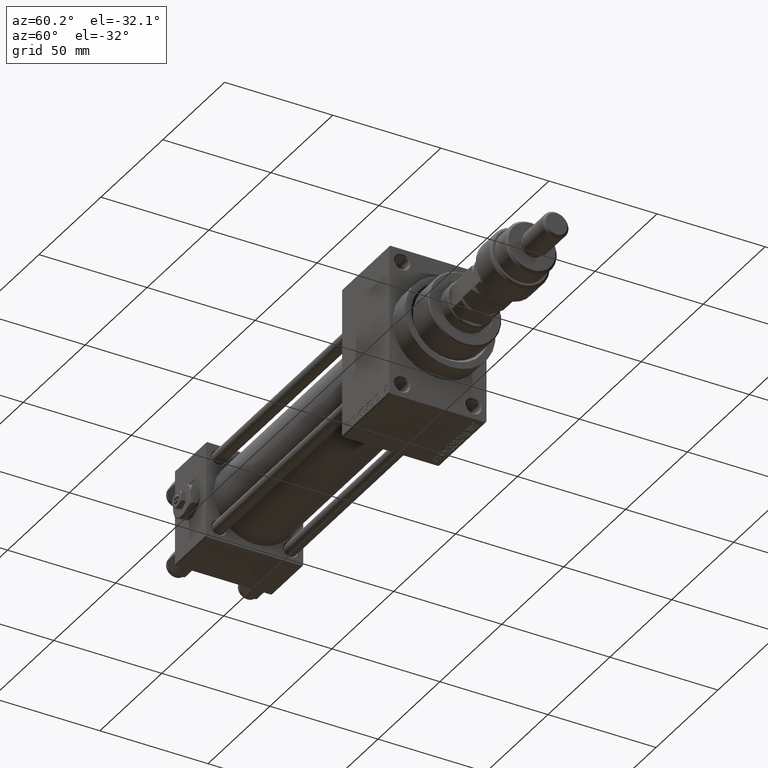
[diagram: clean part render]
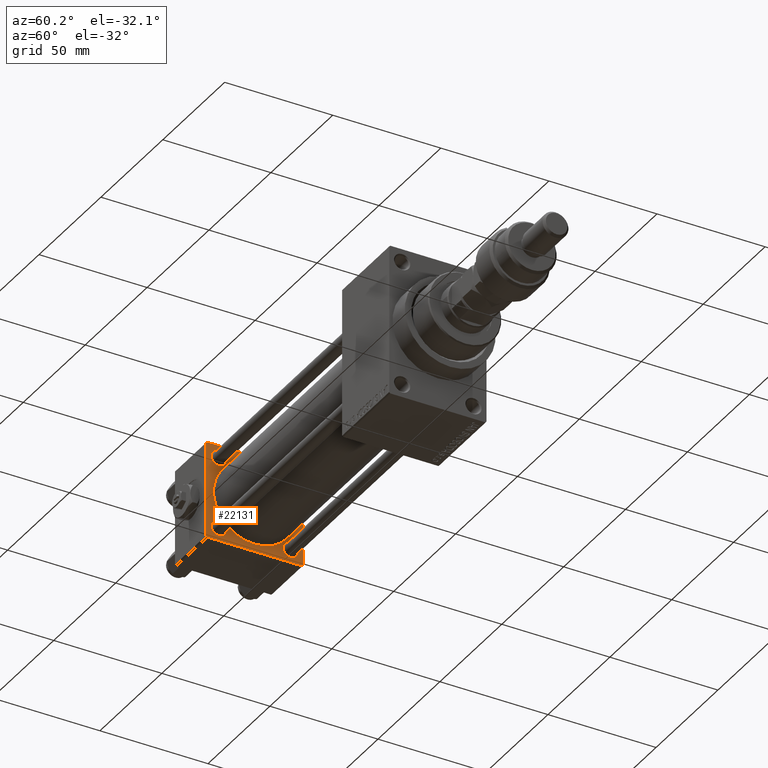
[diagram: same view with one face highlighted and labeled with its STEP entity id]
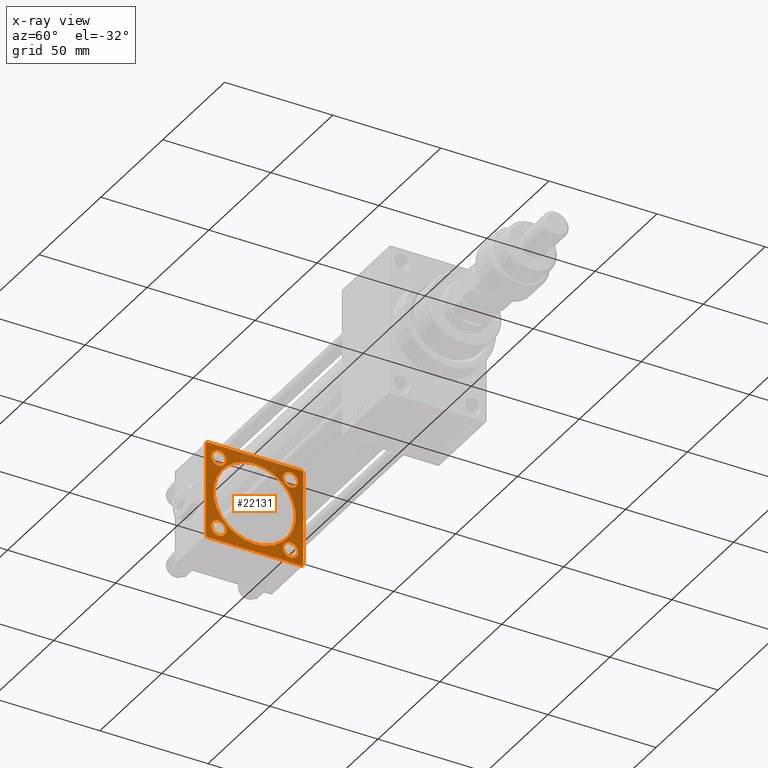
[diagram: x-ray of the same camera — body ghosted, the highlighted face saturated]
A machine part, auxiliary view. The second image highlights one B-rep face of the part: STEP entity #22131.
The next image is the same camera in x-ray: the body ghosted, the highlighted face saturated — about 29% of this face is hidden behind the body in this view.
In plain terms, the highlighted planar face has unit normal (-1, 0, 0).
Its self-contained STEP definition (entity closure, byte-faithful):
#159 = DIRECTION ( 'NONE',  ( 0.000000000000000000, 0.000000000000000000, 1.000000000000000000 ) ) ;
#185 = PLANE ( 'NONE',  #50365 ) ;
#319 = CARTESIAN_POINT ( 'NONE',  ( 25.00000000000000000, -16.59999999999999076, -16.60000000000000853 ) ) ;
#405 = VERTEX_POINT ( 'NONE', #4491 ) ;
#724 = ORIENTED_EDGE ( 'NONE', *, *, #8979, .T. ) ;
#764 = AXIS2_PLACEMENT_3D ( 'NONE', #34613, #7308, #6799 ) ;
#1002 = DIRECTION ( 'NONE',  ( 0.000000000000000000, 0.000000000000000000, -1.000000000000000000 ) ) ;
#1191 = EDGE_CURVE ( 'NONE', #50746, #14739, #18589, .T. ) ;
#1378 = CARTESIAN_POINT ( 'NONE',  ( 25.00000000000000000, 22.50000000000000000, 22.50000000000000355 ) ) ;
#1587 = CARTESIAN_POINT ( 'NONE',  ( 25.00000000000000000, 21.99999999999999289, 22.50000000000000355 ) ) ;
#1727 = CARTESIAN_POINT ( 'NONE',  ( 25.00000000000000000, 22.50000000000000000, -21.99999999999998224 ) ) ;
#1767 = EDGE_LOOP ( 'NONE', ( #1983, #37797 ) ) ;
#1983 = ORIENTED_EDGE ( 'NONE', *, *, #10281, .T. ) ;
#2132 = EDGE_CURVE ( 'NONE', #22967, #17216, #47740, .T. ) ;
#2369 = ORIENTED_EDGE ( 'NONE', *, *, #47447, .T. ) ;
#3317 = FACE_OUTER_BOUND ( 'NONE', #11206, .T. ) ;
#4084 = CIRCLE ( 'NONE', #42258, 3.500000000000003109 ) ;
#4204 = CIRCLE ( 'NONE', #47431, 19.00000000000000000 ) ;
#4491 = CARTESIAN_POINT ( 'NONE',  ( 24.99999999999999289, -2.602085213965210642E-15, 19.00000000000000000 ) ) ;
#4568 = CARTESIAN_POINT ( 'NONE',  ( 25.00000000000000000, 16.59999999999999787, 16.60000000000000497 ) ) ;
#5181 = DIRECTION ( 'NONE',  ( -0.000000000000000000, -0.7071067811865525687, -0.7071067811865425767 ) ) ;
#5277 = LINE ( 'NONE', #1378, #32098 ) ;
#5994 = CARTESIAN_POINT ( 'NONE',  ( 25.00000000000000000, -16.59999999999999076, 20.09999999999998721 ) ) ;
#6323 = CARTESIAN_POINT ( 'NONE',  ( 25.00000000000000000, 21.99999999999999289, 22.50000000000000355 ) ) ;
#6492 = CARTESIAN_POINT ( 'NONE',  ( 25.00000000000000000, 16.59999999999999787, -20.10000000000000853 ) ) ;
#6498 = CIRCLE ( 'NONE', #32221, 3.499999999999978684 ) ;
#6561 = EDGE_LOOP ( 'NONE', ( #25843, #42672 ) ) ;
#6779 = CARTESIAN_POINT ( 'NONE',  ( 25.00000000000000000, -22.50000000000000000, -21.99999999999997158 ) ) ;
#6799 = DIRECTION ( 'NONE',  ( 0.000000000000000000, 0.000000000000000000, 1.000000000000000000 ) ) ;
#6979 = DIRECTION ( 'NONE',  ( -1.000000000000000000, 0.000000000000000000, -0.000000000000000000 ) ) ;
#7204 = FACE_BOUND ( 'NONE', #1767, .T. ) ;
#7308 = DIRECTION ( 'NONE',  ( -1.000000000000000000, 0.000000000000000000, -0.000000000000000000 ) ) ;
#7979 = FACE_BOUND ( 'NONE', #6561, .T. ) ;
#8000 = EDGE_CURVE ( 'NONE', #14739, #50746, #35445, .T. ) ;
#8032 = ORIENTED_EDGE ( 'NONE', *, *, #38537, .F. ) ;
#8922 = EDGE_LOOP ( 'NONE', ( #41656, #34634 ) ) ;
#8948 = CARTESIAN_POINT ( 'NONE',  ( 24.99999999999999289, -2.602085213965210642E-15, 0.000000000000000000 ) ) ;
#8979 = EDGE_CURVE ( 'NONE', #13433, #18764, #50464, .T. ) ;
#10072 = EDGE_LOOP ( 'NONE', ( #38304, #2369 ) ) ;
#10281 = EDGE_CURVE ( 'NONE', #17216, #22967, #15507, .T. ) ;
#10525 = EDGE_CURVE ( 'NONE', #31506, #26082, #5277, .T. ) ;
#10726 = CARTESIAN_POINT ( 'NONE',  ( 25.00000000000000000, 22.50000000000000000, 22.50000000000000355 ) ) ;
#11206 = EDGE_LOOP ( 'NONE', ( #8032, #43849, #24056, #45571, #46232, #44881, #16157, #724 ) ) ;
#11280 = CIRCLE ( 'NONE', #20438, 3.500000000000003109 ) ;
#12788 = CARTESIAN_POINT ( 'NONE',  ( 25.00000000000000000, -16.59999999999999076, -16.60000000000000853 ) ) ;
#13116 = VERTEX_POINT ( 'NONE', #19564 ) ;
#13293 = CARTESIAN_POINT ( 'NONE',  ( 25.00000000000000000, 21.99999999999999289, -22.49999999999999645 ) ) ;
#13433 = VERTEX_POINT ( 'NONE', #6779 ) ;
#13549 = DIRECTION ( 'NONE',  ( -1.000000000000000000, 0.000000000000000000, -0.000000000000000000 ) ) ;
#14042 = VECTOR ( 'NONE', #5181, 999.9999999999998863 ) ;
#14626 = DIRECTION ( 'NONE',  ( 0.000000000000000000, 0.000000000000000000, -1.000000000000000000 ) ) ;
#14737 = ORIENTED_EDGE ( 'NONE', *, *, #8000, .T. ) ;
#14739 = VERTEX_POINT ( 'NONE', #24406 ) ;
#14805 = DIRECTION ( 'NONE',  ( 0.000000000000000000, 0.7071067811865426878, -0.7071067811865524577 ) ) ;
#14872 = CIRCLE ( 'NONE', #764, 3.499999999999978684 ) ;
#15010 = DIRECTION ( 'NONE',  ( -1.000000000000000000, 0.000000000000000000, -0.000000000000000000 ) ) ;
#15154 = DIRECTION ( 'NONE',  ( -1.000000000000000000, 0.000000000000000000, -0.000000000000000000 ) ) ;
#15375 = VERTEX_POINT ( 'NONE', #19617 ) ;
#15385 = EDGE_CURVE ( 'NONE', #42563, #15375, #4084, .T. ) ;
#15507 = CIRCLE ( 'NONE', #49559, 3.500000000000003109 ) ;
#15535 = CARTESIAN_POINT ( 'NONE',  ( 25.00000000000000000, 16.59999999999999787, 20.10000000000000853 ) ) ;
#15626 = CARTESIAN_POINT ( 'NONE',  ( 25.00000000000000000, 16.59999999999999787, 13.10000000000000142 ) ) ;
#16157 = ORIENTED_EDGE ( 'NONE', *, *, #37601, .T. ) ;
#16735 = EDGE_CURVE ( 'NONE', #26082, #45874, #32739, .T. ) ;
#17188 = DIRECTION ( 'NONE',  ( 0.000000000000000000, 0.000000000000000000, 1.000000000000000000 ) ) ;
#17216 = VERTEX_POINT ( 'NONE', #15626 ) ;
#17231 = DIRECTION ( 'NONE',  ( 0.000000000000000000, -1.000000000000000000, -7.709882115452476934E-17 ) ) ;
#17245 = VECTOR ( 'NONE', #20462, 1000.000000000000000 ) ;
#17271 = EDGE_CURVE ( 'NONE', #13116, #38710, #14872, .T. ) ;
#17435 = CARTESIAN_POINT ( 'NONE',  ( 25.00000000000000000, 22.50000000000000000, -22.49999999999999645 ) ) ;
#17808 = DIRECTION ( 'NONE',  ( -1.000000000000000000, 0.000000000000000000, -0.000000000000000000 ) ) ;
#18514 = CARTESIAN_POINT ( 'NONE',  ( 24.99999999999999289, -2.602085213965210642E-15, 0.000000000000000000 ) ) ;
#18589 = CIRCLE ( 'NONE', #33527, 3.499999999999975131 ) ;
#18764 = VERTEX_POINT ( 'NONE', #48592 ) ;
#18777 = LINE ( 'NONE', #10726, #28909 ) ;
#19164 = DIRECTION ( 'NONE',  ( -0.000000000000000000, 0.000000000000000000, 1.000000000000000000 ) ) ;
#19472 = CARTESIAN_POINT ( 'NONE',  ( 25.00000000000000000, -21.99999999999998579, -22.50000000000000711 ) ) ;
#19481 = AXIS2_PLACEMENT_3D ( 'NONE', #4568, #27957, #159 ) ;
#19564 = CARTESIAN_POINT ( 'NONE',  ( 25.00000000000000000, -16.59999999999999076, 13.10000000000002807 ) ) ;
#19617 = CARTESIAN_POINT ( 'NONE',  ( 25.00000000000000000, 16.59999999999999787, -13.10000000000000142 ) ) ;
#19660 = AXIS2_PLACEMENT_3D ( 'NONE', #319, #15154, #43502 ) ;
#19858 = CIRCLE ( 'NONE', #49768, 19.00000000000000000 ) ;
#20438 = AXIS2_PLACEMENT_3D ( 'NONE', #22032, #50164, #45453 ) ;
#20462 = DIRECTION ( 'NONE',  ( -0.000000000000000000, 0.7071067811865426878, 0.7071067811865524577 ) ) ;
#20868 = CARTESIAN_POINT ( 'NONE',  ( 25.00000000000000000, -21.99999999999997868, 22.50000000000000000 ) ) ;
#21701 = CARTESIAN_POINT ( 'NONE',  ( 25.00000000000000000, 16.59999999999999787, 16.60000000000000497 ) ) ;
#22025 = EDGE_CURVE ( 'NONE', #15375, #42563, #11280, .T. ) ;
#22032 = CARTESIAN_POINT ( 'NONE',  ( 25.00000000000000000, 16.59999999999999787, -16.60000000000000497 ) ) ;
#22131 = ADVANCED_FACE ( 'NONE', ( #39702, #22799, #39444, #7204, #7979, #3317 ), #185, .F. ) ;
#22799 = FACE_BOUND ( 'NONE', #8922, .T. ) ;
#22967 = VERTEX_POINT ( 'NONE', #15535 ) ;
#24056 = ORIENTED_EDGE ( 'NONE', *, *, #27961, .F. ) ;
#24381 = VERTEX_POINT ( 'NONE', #48267 ) ;
#24406 = CARTESIAN_POINT ( 'NONE',  ( 25.00000000000000000, -16.59999999999999076, -13.10000000000003162 ) ) ;
#24923 = CARTESIAN_POINT ( 'NONE',  ( 25.00000000000000000, -22.50000000000000000, 22.00000000000000000 ) ) ;
#25843 = ORIENTED_EDGE ( 'NONE', *, *, #32015, .F. ) ;
#26082 = VERTEX_POINT ( 'NONE', #20868 ) ;
#27957 = DIRECTION ( 'NONE',  ( -1.000000000000000000, 0.000000000000000000, -0.000000000000000000 ) ) ;
#27961 = EDGE_CURVE ( 'NONE', #31271, #28544, #18777, .T. ) ;
#28378 = LINE ( 'NONE', #17435, #37530 ) ;
#28544 = VERTEX_POINT ( 'NONE', #33414 ) ;
#28909 = VECTOR ( 'NONE', #14626, 1000.000000000000000 ) ;
#30205 = DIRECTION ( 'NONE',  ( 0.000000000000000000, 0.000000000000000000, 1.000000000000000000 ) ) ;
#30258 = VECTOR ( 'NONE', #45088, 1000.000000000000114 ) ;
#31165 = CARTESIAN_POINT ( 'NONE',  ( 25.00000000000000000, -22.50000000000000000, 22.00000000000000000 ) ) ;
#31271 = VERTEX_POINT ( 'NONE', #33612 ) ;
#31381 = CARTESIAN_POINT ( 'NONE',  ( 25.00000000000000000, 0.000000000000000000, 0.000000000000000000 ) ) ;
#31506 = VERTEX_POINT ( 'NONE', #1587 ) ;
#32015 = EDGE_CURVE ( 'NONE', #405, #24381, #4204, .T. ) ;
#32098 = VECTOR ( 'NONE', #17231, 1000.000000000000000 ) ;
#32221 = AXIS2_PLACEMENT_3D ( 'NONE', #42603, #6979, #34286 ) ;
#32739 = LINE ( 'NONE', #24923, #14042 ) ;
#33414 = CARTESIAN_POINT ( 'NONE',  ( 25.00000000000000000, 22.50000000000000000, -21.99999999999996803 ) ) ;
#33527 = AXIS2_PLACEMENT_3D ( 'NONE', #12788, #13549, #17188 ) ;
#33541 = DIRECTION ( 'NONE',  ( 0.000000000000000000, -1.000000000000000000, -2.312964634635742957E-16 ) ) ;
#33612 = CARTESIAN_POINT ( 'NONE',  ( 25.00000000000000000, 22.50000000000000000, 21.99999999999999645 ) ) ;
#33785 = VECTOR ( 'NONE', #14805, 1000.000000000000000 ) ;
#34286 = DIRECTION ( 'NONE',  ( 0.000000000000000000, 0.000000000000000000, 1.000000000000000000 ) ) ;
#34613 = CARTESIAN_POINT ( 'NONE',  ( 25.00000000000000000, -16.59999999999999076, 16.60000000000000853 ) ) ;
#34634 = ORIENTED_EDGE ( 'NONE', *, *, #22025, .T. ) ;
#35445 = CIRCLE ( 'NONE', #19660, 3.499999999999975131 ) ;
#35486 = CARTESIAN_POINT ( 'NONE',  ( 25.00000000000000000, 16.59999999999999787, -16.60000000000000497 ) ) ;
#35749 = DIRECTION ( 'NONE',  ( -1.000000000000000000, 0.000000000000000000, -0.000000000000000000 ) ) ;
#37325 = LINE ( 'NONE', #1727, #17245 ) ;
#37530 = VECTOR ( 'NONE', #33541, 1000.000000000000000 ) ;
#37601 = EDGE_CURVE ( 'NONE', #45874, #13433, #47606, .T. ) ;
#37797 = ORIENTED_EDGE ( 'NONE', *, *, #2132, .T. ) ;
#38304 = ORIENTED_EDGE ( 'NONE', *, *, #17271, .T. ) ;
#38537 = EDGE_CURVE ( 'NONE', #44547, #18764, #28378, .T. ) ;
#38710 = VERTEX_POINT ( 'NONE', #5994 ) ;
#39444 = FACE_BOUND ( 'NONE', #10072, .T. ) ;
#39702 = FACE_BOUND ( 'NONE', #42879, .T. ) ;
#41656 = ORIENTED_EDGE ( 'NONE', *, *, #15385, .T. ) ;
#41944 = LINE ( 'NONE', #6323, #30258 ) ;
#42258 = AXIS2_PLACEMENT_3D ( 'NONE', #35486, #35749, #43821 ) ;
#42563 = VERTEX_POINT ( 'NONE', #6492 ) ;
#42603 = CARTESIAN_POINT ( 'NONE',  ( 25.00000000000000000, -16.59999999999999076, 16.60000000000000853 ) ) ;
#42672 = ORIENTED_EDGE ( 'NONE', *, *, #49179, .F. ) ;
#42879 = EDGE_LOOP ( 'NONE', ( #46200, #14737 ) ) ;
#42989 = EDGE_CURVE ( 'NONE', #31271, #31506, #41944, .T. ) ;
#43502 = DIRECTION ( 'NONE',  ( 0.000000000000000000, 0.000000000000000000, 1.000000000000000000 ) ) ;
#43821 = DIRECTION ( 'NONE',  ( 0.000000000000000000, 0.000000000000000000, 1.000000000000000000 ) ) ;
#43849 = ORIENTED_EDGE ( 'NONE', *, *, #46883, .T. ) ;
#44199 = CARTESIAN_POINT ( 'NONE',  ( 25.00000000000000000, -22.50000000000000000, 22.50000000000000000 ) ) ;
#44547 = VERTEX_POINT ( 'NONE', #13293 ) ;
#44835 = DIRECTION ( 'NONE',  ( 0.000000000000000000, 0.000000000000000000, 1.000000000000000000 ) ) ;
#44881 = ORIENTED_EDGE ( 'NONE', *, *, #16735, .T. ) ;
#45088 = DIRECTION ( 'NONE',  ( 0.000000000000000000, -0.7071067811865474617, 0.7071067811865474617 ) ) ;
#45453 = DIRECTION ( 'NONE',  ( 0.000000000000000000, 0.000000000000000000, 1.000000000000000000 ) ) ;
#45571 = ORIENTED_EDGE ( 'NONE', *, *, #42989, .T. ) ;
#45874 = VERTEX_POINT ( 'NONE', #31165 ) ;
#46200 = ORIENTED_EDGE ( 'NONE', *, *, #1191, .T. ) ;
#46232 = ORIENTED_EDGE ( 'NONE', *, *, #10525, .T. ) ;
#46668 = VECTOR ( 'NONE', #1002, 1000.000000000000000 ) ;
#46883 = EDGE_CURVE ( 'NONE', #44547, #28544, #37325, .T. ) ;
#47431 = AXIS2_PLACEMENT_3D ( 'NONE', #8948, #49011, #44835 ) ;
#47447 = EDGE_CURVE ( 'NONE', #38710, #13116, #6498, .T. ) ;
#47606 = LINE ( 'NONE', #44199, #46668 ) ;
#47740 = CIRCLE ( 'NONE', #19481, 3.500000000000003109 ) ;
#48110 = CARTESIAN_POINT ( 'NONE',  ( 25.00000000000000000, -16.59999999999999076, -20.09999999999998366 ) ) ;
#48267 = CARTESIAN_POINT ( 'NONE',  ( 24.99999999999999289, -2.752562955852396712E-16, -19.00000000000000000 ) ) ;
#48592 = CARTESIAN_POINT ( 'NONE',  ( 25.00000000000000000, -21.99999999999997158, -22.50000000000000711 ) ) ;
#48800 = DIRECTION ( 'NONE',  ( 0.000000000000000000, 0.000000000000000000, 1.000000000000000000 ) ) ;
#49011 = DIRECTION ( 'NONE',  ( 1.000000000000000000, -0.000000000000000000, 0.000000000000000000 ) ) ;
#49179 = EDGE_CURVE ( 'NONE', #24381, #405, #19858, .T. ) ;
#49559 = AXIS2_PLACEMENT_3D ( 'NONE', #21701, #17808, #48800 ) ;
#49768 = AXIS2_PLACEMENT_3D ( 'NONE', #18514, #50273, #30205 ) ;
#50164 = DIRECTION ( 'NONE',  ( -1.000000000000000000, 0.000000000000000000, -0.000000000000000000 ) ) ;
#50273 = DIRECTION ( 'NONE',  ( 1.000000000000000000, -0.000000000000000000, 0.000000000000000000 ) ) ;
#50365 = AXIS2_PLACEMENT_3D ( 'NONE', #31381, #15010, #19164 ) ;
#50464 = LINE ( 'NONE', #19472, #33785 ) ;
#50746 = VERTEX_POINT ( 'NONE', #48110 ) ;